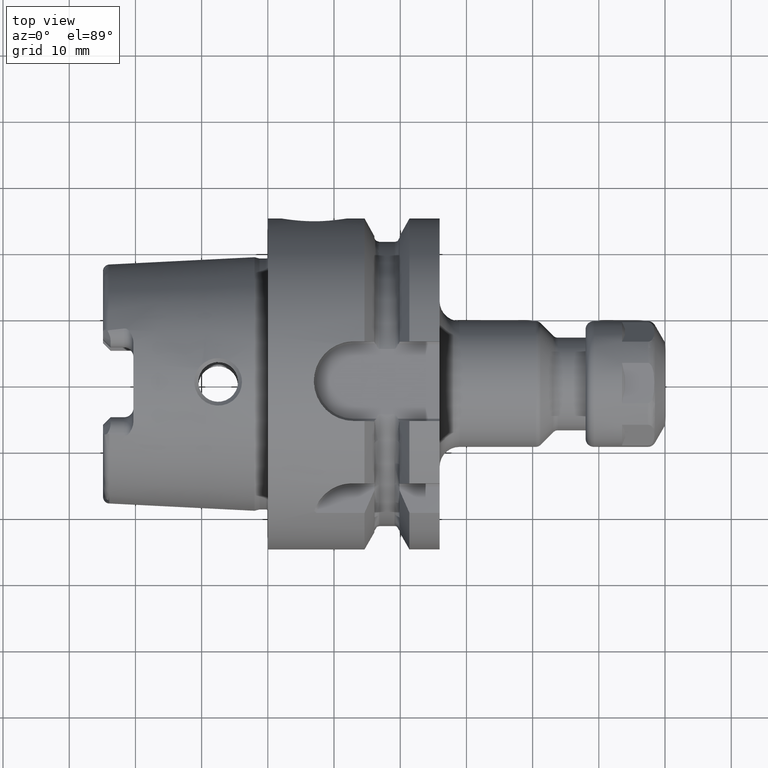
[diagram: clean part render]
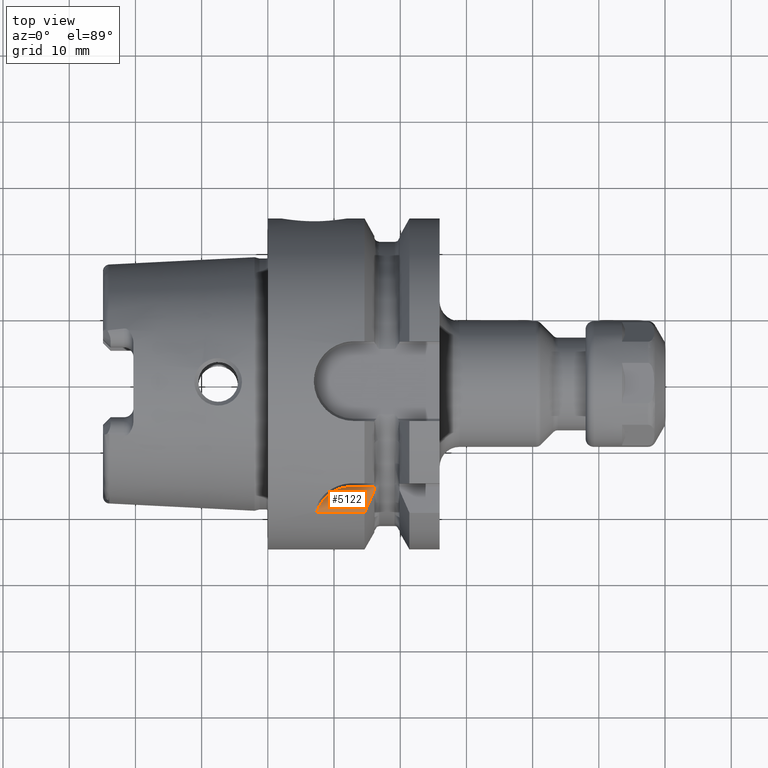
[diagram: same view with one face highlighted and labeled with its STEP entity id]
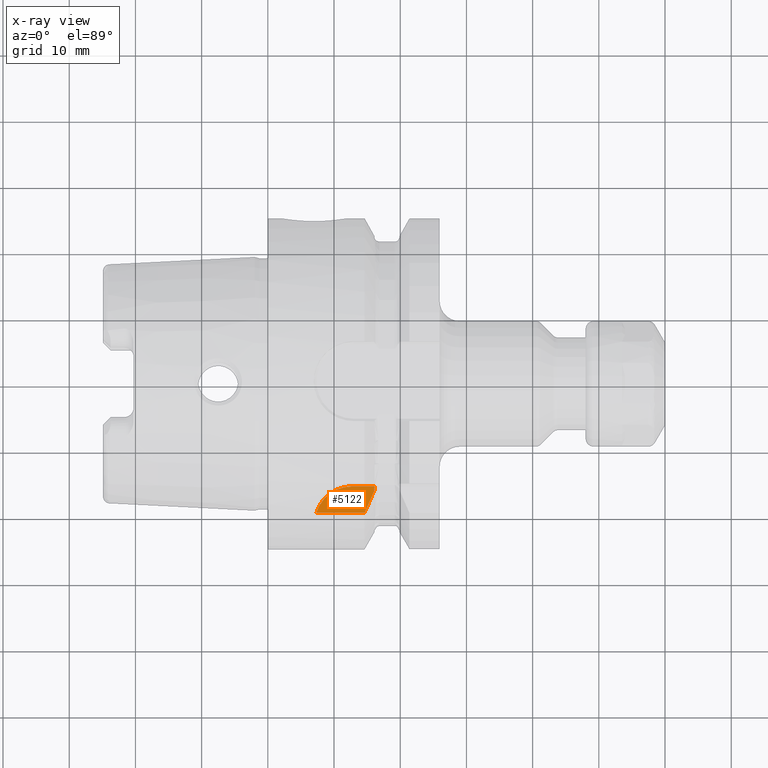
[diagram: x-ray of the same camera — body ghosted, the highlighted face saturated]
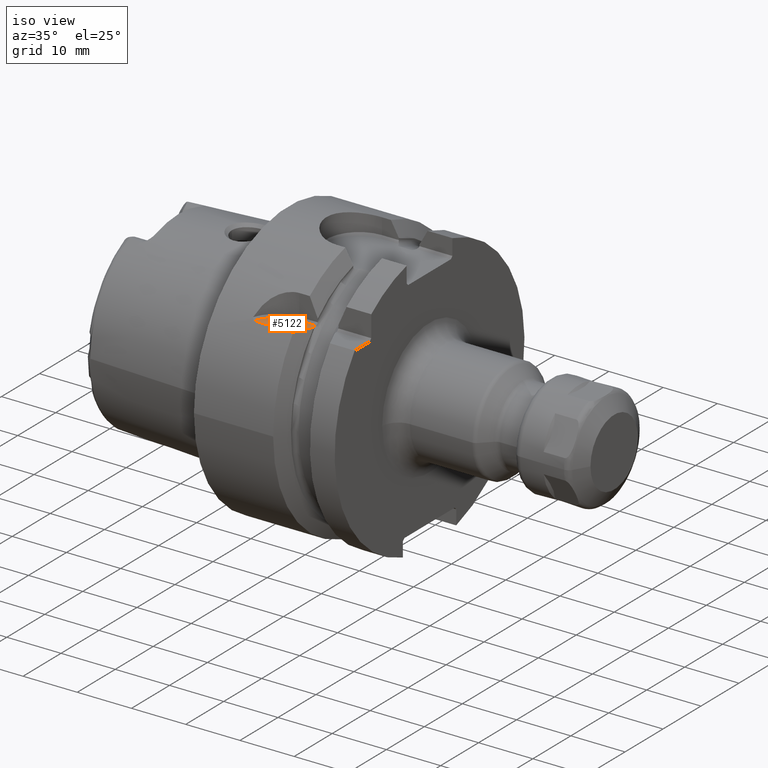
[diagram: same view with one face highlighted and labeled with its STEP entity id]
A machine part, top view. The second image highlights one B-rep face of the part: STEP entity #5122.
The next image is the same camera in x-ray: the body ghosted, the highlighted face saturated — about 0% of this face is hidden behind the body in this view.
A second angle (iso view) of the same face is appended — the face is thin or edge-on in the first view.
In plain terms, the highlighted planar face has unit normal (0, 0, 1).
Its self-contained STEP definition (entity closure, byte-faithful):
#966=DIRECTION('',(1.E0,6.189435976035E-8,-2.143060964371E-7));
#967=VECTOR('',#966,7.275739392870E0);
#968=CARTESIAN_POINT('',(7.332327775641E0,-1.973265105789E1,1.535000155924E1));
#969=LINE('',#968,#967);
#1731=DIRECTION('',(0.E0,1.E0,0.E0));
#1732=VECTOR('',#1731,2.926490062944E-1);
#1733=CARTESIAN_POINT('',(1.60875E1,-1.636523825010E1,1.535E1));
#1734=LINE('',#1733,#1732);
#1735=CARTESIAN_POINT('',(1.60875E1,-1.636523825010E1,1.535E1));
#1736=CARTESIAN_POINT('',(1.594222955282E1,-1.671021589054E1,1.535E1));
#1737=CARTESIAN_POINT('',(1.563917139666E1,-1.741962945744E1,1.535E1));
#1738=CARTESIAN_POINT('',(1.514914658008E1,-1.853580810939E1,1.535E1));
#1739=CARTESIAN_POINT('',(1.479309423109E1,-1.932662776812E1,1.535E1));
#1740=CARTESIAN_POINT('',(1.460806716851E1,-1.973265060756E1,1.535E1));
#1742=CARTESIAN_POINT('',(1.269368627289E1,-2.135E1,1.535E1));
#1743=DIRECTION('',(0.E0,0.E0,-1.E0));
#1744=DIRECTION('',(-9.573857125066E-1,2.888123915073E-1,0.E0));
#1745=AXIS2_PLACEMENT_3D('',#1742,#1743,#1744);
#1747=DIRECTION('',(9.999999999998E-1,4.545162872116E-7,-4.544871516819E-7));
#1748=VECTOR('',#1747,3.430650616086E0);
#1749=CARTESIAN_POINT('',(1.269368627811E1,-1.575000155929E1,1.535000155919E1));
#1750=LINE('',#1749,#1748);
#1751=CARTESIAN_POINT('',(1.60875E1,-1.607258924380E1,1.535E1));
#1752=CARTESIAN_POINT('',(1.60875E1,-1.601750661286E1,1.535E1));
#1753=CARTESIAN_POINT('',(1.609380833660E1,-1.590866065154E1,1.535E1));
#1754=CARTESIAN_POINT('',(1.611211056121E1,-1.580244426033E1,1.535E1));
#1755=CARTESIAN_POINT('',(1.612433689420E1,-1.575E1,1.535E1));
#3059=CARTESIAN_POINT('',(1.60875E1,-1.636523825010E1,1.535E1));
#3060=CARTESIAN_POINT('',(1.60875E1,-1.607258924380E1,1.535E1));
#3061=VERTEX_POINT('',#3059);
#3062=VERTEX_POINT('',#3060);
#3063=VERTEX_POINT('',#1755);
#3069=VERTEX_POINT('',#1740);
#3134=CARTESIAN_POINT('',(7.332335239587E0,-1.973265330952E1,1.535E1));
#3135=CARTESIAN_POINT('',(1.269368627289E1,-1.575000935541E1,1.535E1));
#3136=VERTEX_POINT('',#3134);
#3137=VERTEX_POINT('',#3135);
#5107=CARTESIAN_POINT('',(0.E0,0.E0,1.535E1));
#5108=DIRECTION('',(0.E0,0.E0,1.E0));
#5109=DIRECTION('',(1.E0,0.E0,0.E0));
#5110=AXIS2_PLACEMENT_3D('',#5107,#5108,#5109);
#5111=PLANE('',#5110);
#5112=ORIENTED_EDGE('',*,*,#4588,.F.);
#5113=ORIENTED_EDGE('',*,*,#4791,.T.);
#5114=ORIENTED_EDGE('',*,*,#4294,.F.);
#5116=ORIENTED_EDGE('',*,*,#5115,.T.);
#5118=ORIENTED_EDGE('',*,*,#5117,.T.);
#5119=ORIENTED_EDGE('',*,*,#4609,.F.);
#5120=EDGE_LOOP('',(#5112,#5113,#5114,#5116,#5118,#5119));
#5121=FACE_OUTER_BOUND('',#5120,.F.);
#5122=ADVANCED_FACE('',(#5121),#5111,.T.);
#1741=B_SPLINE_CURVE_WITH_KNOTS('',3,(#1735,#1736,#1737,#1738,#1739,#1740),
.UNSPECIFIED.,.F.,.F.,(4,1,1,4),(0.E0,3.333333333333E-1,6.666666666667E-1,1.E0),
.UNSPECIFIED.);
#1746=CIRCLE('',#1745,5.599990644588E0);
#1756=B_SPLINE_CURVE_WITH_KNOTS('',3,(#1751,#1752,#1753,#1754,#1755),
.UNSPECIFIED.,.F.,.F.,(4,1,4),(0.E0,5.E-1,1.E0),.UNSPECIFIED.);
#4294=EDGE_CURVE('',#3136,#3069,#969,.T.);
#4588=EDGE_CURVE('',#3061,#3062,#1734,.T.);
#4609=EDGE_CURVE('',#3062,#3063,#1756,.T.);
#4791=EDGE_CURVE('',#3061,#3069,#1741,.T.);
#5115=EDGE_CURVE('',#3136,#3137,#1746,.T.);
#5117=EDGE_CURVE('',#3137,#3063,#1750,.T.);